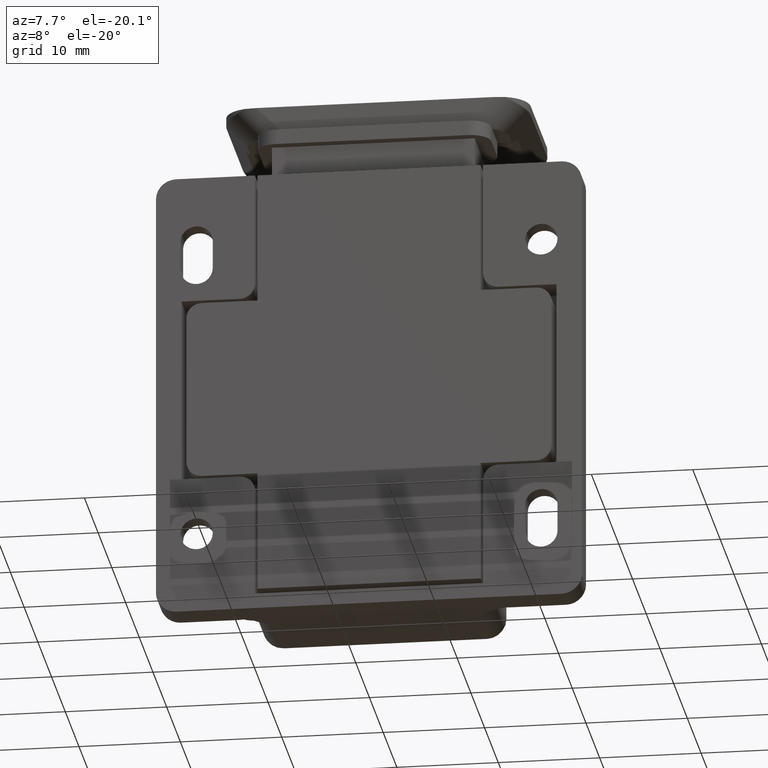
[diagram: clean part render]
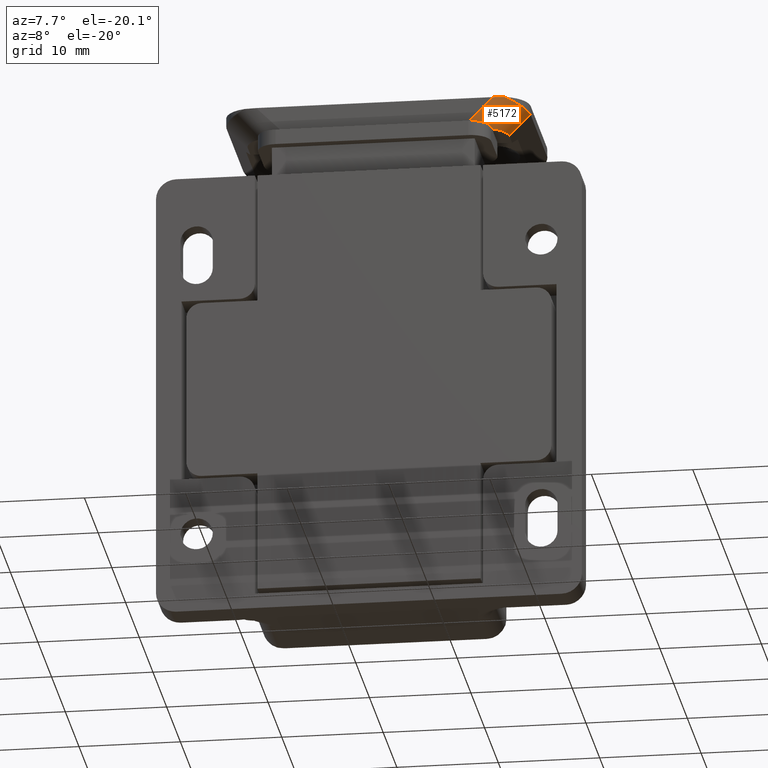
[diagram: same view with one face highlighted and labeled with its STEP entity id]
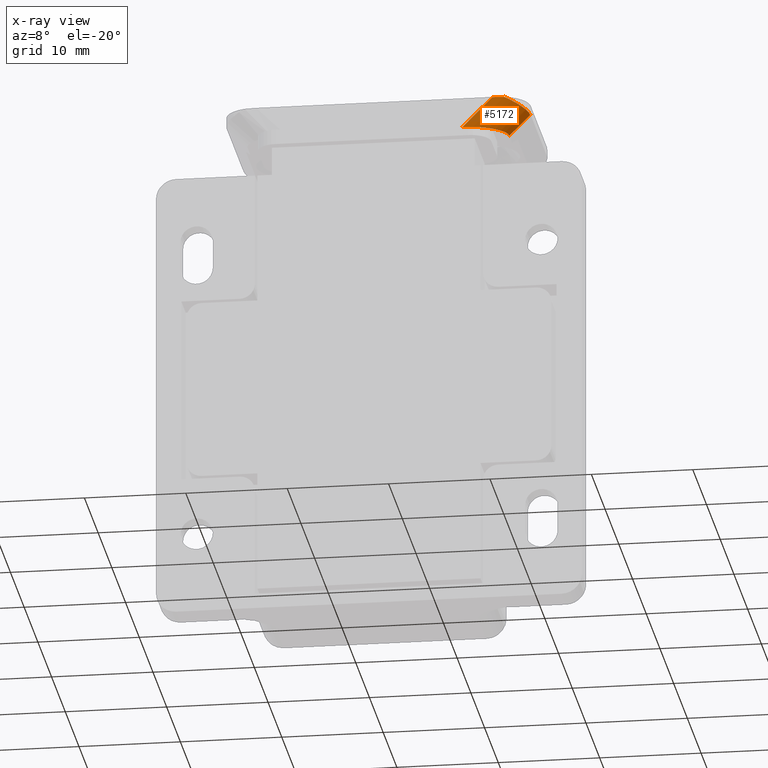
[diagram: x-ray of the same camera — body ghosted, the highlighted face saturated]
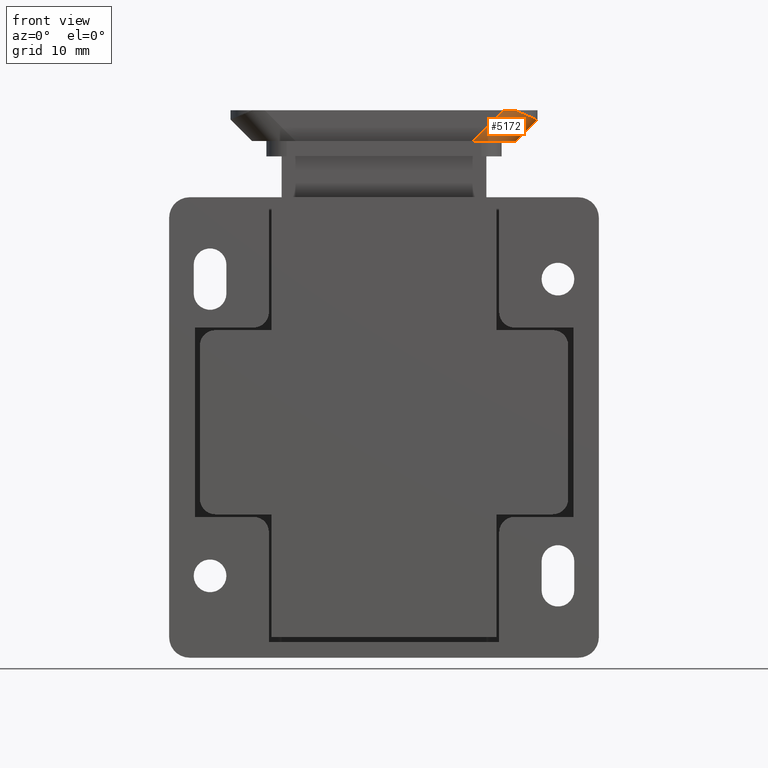
[diagram: same view with one face highlighted and labeled with its STEP entity id]
A machine part, auxiliary view. The second image highlights one B-rep face of the part: STEP entity #5172.
The next image is the same camera in x-ray: the body ghosted, the highlighted face saturated — about 0% of this face is hidden behind the body in this view.
A second angle (front view) of the same face is appended — the face is thin or edge-on in the first view.
In plain terms, the highlighted cylindrical surface (edge-blend (fillet) strip) has radius 3 mm, axis along (0.7071, -0, 0.7071).
Its self-contained STEP definition (entity closure, byte-faithful):
#327 = CARTESIAN_POINT ( 'NONE',  ( 14.53054318517639500, -52.25921412001031300, 5.520003110810276500 ) ) ;
#372 = CARTESIAN_POINT ( 'NONE',  ( 12.89996100000920300, -50.00000000000000000, 5.342646687119264800 ) ) ;
#401 = LINE ( 'NONE', #7121, #577 ) ;
#507 =( BOUNDED_CURVE ( )  B_SPLINE_CURVE ( 3, ( #5734, #372, #4560, #2178 ),
 .UNSPECIFIED., .F., .F. ) 
 B_SPLINE_CURVE_WITH_KNOTS ( ( 4, 4 ),
 ( 0.0000000000000000000, 1.570796326794911000 ),
 .UNSPECIFIED. ) 
 CURVE ( )  GEOMETRIC_REPRESENTATION_ITEM ( )  RATIONAL_B_SPLINE_CURVE ( ( 1.000000000000000000, 0.8047378541243617200, 0.8047378541243617200, 1.000000000000000000 ) ) 
 REPRESENTATION_ITEM ( '' )  );
#532 = EDGE_CURVE ( 'NONE', #6939, #4693, #6713, .T. ) ;
#577 = VECTOR ( 'NONE', #3586, 1000.000000000000100 ) ;
#821 = FACE_OUTER_BOUND ( 'NONE', #6834, .T. ) ;
#912 = CARTESIAN_POINT ( 'NONE',  ( 11.65732449706670000, -53.00000000000000000, 4.100006000000095500 ) ) ;
#942 = CARTESIAN_POINT ( 'NONE',  ( 14.24266319449979600, -52.38247770659219100, 5.125894630170287200 ) ) ;
#1202 = AXIS2_PLACEMENT_3D ( 'NONE', #4826, #5990, #2445 ) ;
#1364 = ORIENTED_EDGE ( 'NONE', *, *, #2389, .F. ) ;
#1525 = CARTESIAN_POINT ( 'NONE',  ( 13.90268575293244500, -52.52804886071813000, 4.790527192253459400 ) ) ;
#1727 = EDGE_CURVE ( 'NONE', #5949, #5298, #2455, .T. ) ;
#2035 = CARTESIAN_POINT ( 'NONE',  ( 12.80052276948216100, -53.00000000000000000, 4.210966026819000300 ) ) ;
#2055 = ORIENTED_EDGE ( 'NONE', *, *, #3258, .F. ) ;
#2100 = CARTESIAN_POINT ( 'NONE',  ( 12.80052276948216100, -53.00000000000000000, 4.210966026819000300 ) ) ;
#2130 = CARTESIAN_POINT ( 'NONE',  ( 13.38422591925033700, -52.75004569263160900, 4.426650630679642300 ) ) ;
#2178 = CARTESIAN_POINT ( 'NONE',  ( 8.657310211352299900, -50.00000000000000000, 4.100006000000095500 ) ) ;
#2207 = ORIENTED_EDGE ( 'NONE', *, *, #1727, .T. ) ;
#2389 = EDGE_CURVE ( 'NONE', #5949, #5544, #401, .T. ) ;
#2445 = DIRECTION ( 'NONE',  ( 0.7071050976009626300, 0.7071084647681239500, 0.0000000000000000000 ) ) ;
#2455 = B_SPLINE_CURVE_WITH_KNOTS ( 'NONE', 3,
 ( #2703, #5664, #3869, #6836, #3304, #7424, #3898, #327, #4524, #942, #5113, #1525, #5694, #2130, #6269, #2730 ),
 .UNSPECIFIED., .F., .F.,
 ( 4, 2, 2, 2, 2, 2, 2, 4 ),
 ( 2.817231649034676000E-015, 0.0005018114753922690700, 0.001003622950781721000, 0.001505434426171172900, 0.002007245901560624700, 0.002509057376950076500, 0.003010868852339528700, 0.004014491803118432200 ),
 .UNSPECIFIED. ) ;
#2703 = CARTESIAN_POINT ( 'NONE',  ( 14.97071050976010100, -52.07073964908579500, 7.100005999999999600 ) ) ;
#2730 = CARTESIAN_POINT ( 'NONE',  ( 12.80052276948216100, -53.00000000000000000, 4.210966026819000300 ) ) ;
#3178 = CARTESIAN_POINT ( 'NONE',  ( 8.657310211352299900, -50.00000000000000000, 4.100006000000095500 ) ) ;
#3226 = DIRECTION ( 'NONE',  ( 0.7071084647681238300, -0.7071050976009627400, -0.0000000000000000000 ) ) ;
#3258 = EDGE_CURVE ( 'NONE', #4693, #5298, #4230, .T. ) ;
#3304 = CARTESIAN_POINT ( 'NONE',  ( 14.85977817631276900, -52.11824236671337500, 6.271107802188240900 ) ) ;
#3586 = DIRECTION ( 'NONE',  ( -0.7071084647681238300, 0.7071050976009627400, 0.0000000000000000000 ) ) ;
#3756 = VECTOR ( 'NONE', #3226, 1000.000000000000100 ) ;
#3869 = CARTESIAN_POINT ( 'NONE',  ( 14.95669056957162900, -52.07674479885895400, 6.764353992922949900 ) ) ;
#3898 = CARTESIAN_POINT ( 'NONE',  ( 14.68603622905578900, -52.19263545117852500, 5.808036587638526700 ) ) ;
#4230 =( BOUNDED_CURVE ( )  B_SPLINE_CURVE ( 3, ( #912, #4497, #5665, #2100 ),
 .UNSPECIFIED., .F., .F. ) 
 B_SPLINE_CURVE_WITH_KNOTS ( ( 4, 4 ),
 ( 4.712388980384675500, 4.985214763159452100 ),
 .UNSPECIFIED. ) 
 CURVE ( )  GEOMETRIC_REPRESENTATION_ITEM ( )  RATIONAL_B_SPLINE_CURVE ( ( 1.000000000000000000, 0.9938067871515735600, 0.9938067871515735600, 1.000000000000000000 ) ) 
 REPRESENTATION_ITEM ( '' )  );
#4497 = CARTESIAN_POINT ( 'NONE',  ( 12.04436081594808500, -52.99999999999999300, 4.100005999999994300 ) ) ;
#4524 = CARTESIAN_POINT ( 'NONE',  ( 14.44018382780100400, -52.29790389181206200, 5.381337906083556900 ) ) ;
#4560 = CARTESIAN_POINT ( 'NONE',  ( 11.14259750293459900, -50.00000000000000000, 4.100005999999975600 ) ) ;
#4693 = VERTEX_POINT ( 'NONE', #6724 ) ;
#4826 = CARTESIAN_POINT ( 'NONE',  ( 14.92403743840640100, -56.26669738563760600, 7.100005999999999600 ) ) ;
#4928 = CARTESIAN_POINT ( 'NONE',  ( 11.27864808815872000, -52.62132539430439900, 4.100006000000095500 ) ) ;
#5113 = CARTESIAN_POINT ( 'NONE',  ( 14.13502533433876000, -52.42856580619209700, 5.007883671700779100 ) ) ;
#5172 = ADVANCED_FACE ( 'NONE', ( #821 ), #5386, .T. ) ;
#5298 = VERTEX_POINT ( 'NONE', #2035 ) ;
#5386 = CYLINDRICAL_SURFACE ( 'NONE', #1202, 3.000000000000003100 ) ;
#5452 = EDGE_CURVE ( 'NONE', #5544, #6939, #507, .T. ) ;
#5544 = VERTEX_POINT ( 'NONE', #6085 ) ;
#5664 = CARTESIAN_POINT ( 'NONE',  ( 14.97071135416976000, -52.07074049349144200, 6.931116305803280800 ) ) ;
#5665 = CARTESIAN_POINT ( 'NONE',  ( 12.42780163737511900, -52.99999999999999300, 4.137223169458385600 ) ) ;
#5667 = ORIENTED_EDGE ( 'NONE', *, *, #532, .F. ) ;
#5694 = CARTESIAN_POINT ( 'NONE',  ( 13.77680762103356200, -52.58194751904444100, 4.690510799099328700 ) ) ;
#5734 = CARTESIAN_POINT ( 'NONE',  ( 12.89996100000922000, -50.00000000000000000, 7.100005999999999600 ) ) ;
#5949 = VERTEX_POINT ( 'NONE', #6309 ) ;
#5990 = DIRECTION ( 'NONE',  ( 0.7071084647681238300, -0.7071050976009627400, 0.0000000000000000000 ) ) ;
#6085 = CARTESIAN_POINT ( 'NONE',  ( 12.89996100000922000, -50.00000000000000000, 7.100005999999999600 ) ) ;
#6269 = CARTESIAN_POINT ( 'NONE',  ( 13.10048700789813700, -52.87153689992990700, 4.295730475358286800 ) ) ;
#6309 = CARTESIAN_POINT ( 'NONE',  ( 14.97071050976010100, -52.07073964908579500, 7.100005999999999600 ) ) ;
#6383 = ORIENTED_EDGE ( 'NONE', *, *, #5452, .F. ) ;
#6713 = LINE ( 'NONE', #4928, #3756 ) ;
#6724 = CARTESIAN_POINT ( 'NONE',  ( 11.65732449706670000, -53.00000000000000000, 4.100006000000095500 ) ) ;
#6834 = EDGE_LOOP ( 'NONE', ( #1364, #2207, #2055, #5667, #6383 ) ) ;
#6836 = CARTESIAN_POINT ( 'NONE',  ( 14.90151543398297000, -52.10037094242020600, 6.434946115699651700 ) ) ;
#6939 = VERTEX_POINT ( 'NONE', #3178 ) ;
#7121 = CARTESIAN_POINT ( 'NONE',  ( 12.89996100000915800, -50.00000000000000000, 7.100005999999999600 ) ) ;
#7424 = CARTESIAN_POINT ( 'NONE',  ( 14.75202434164735300, -52.16438071216683900, 5.958183957464742200 ) ) ;